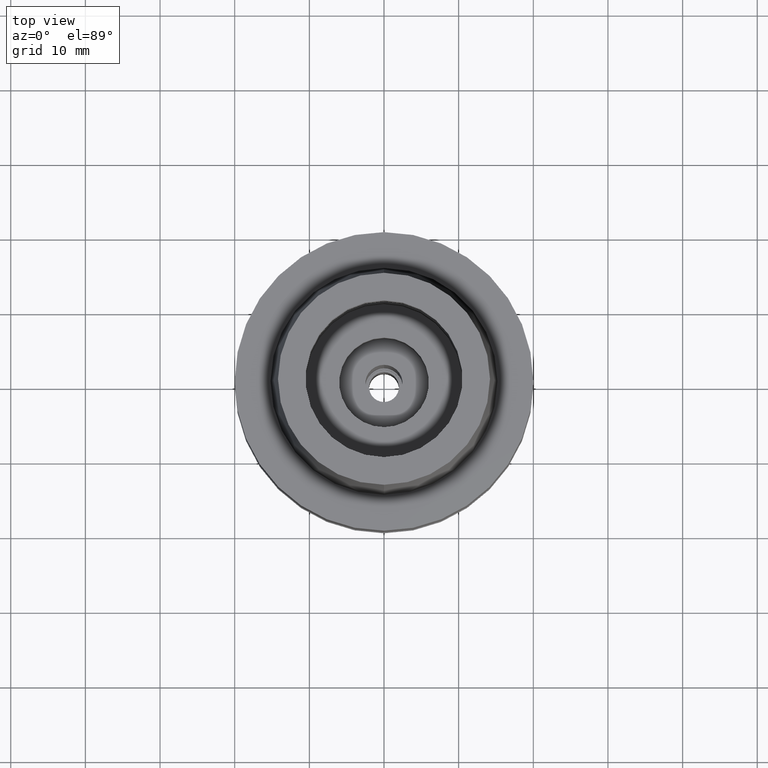
[diagram: clean part render]
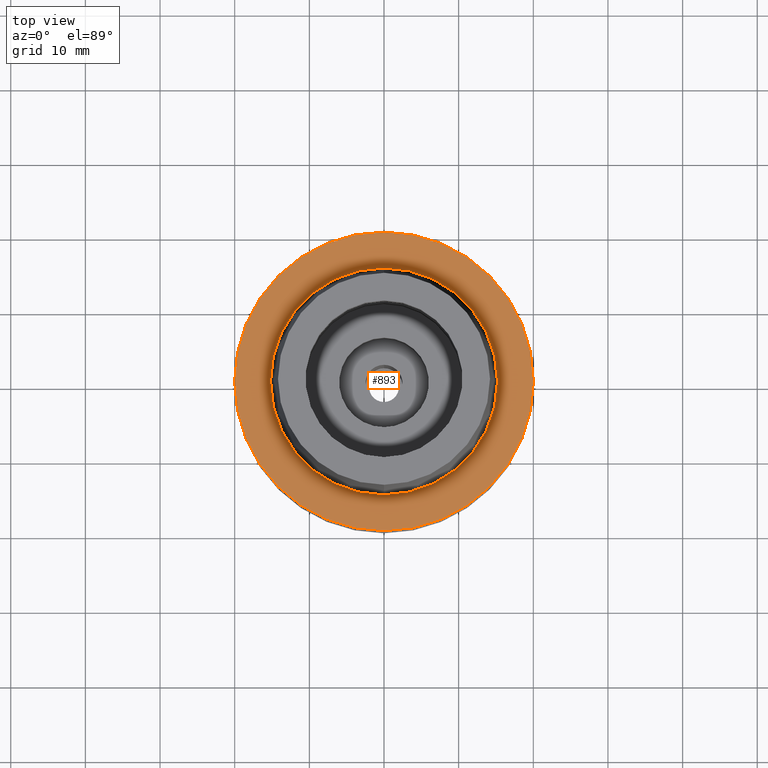
[diagram: same view with one face highlighted and labeled with its STEP entity id]
A machine part, top view. The second image highlights one B-rep face of the part: STEP entity #893.
In plain terms, the highlighted planar face has unit normal (0, 0, 1).
Its self-contained STEP definition (entity closure, byte-faithful):
#64=CARTESIAN_POINT('',(0.E0,0.E0,0.E0));
#65=DIRECTION('',(0.E0,0.E0,-1.E0));
#66=DIRECTION('',(0.E0,-1.E0,0.E0));
#67=AXIS2_PLACEMENT_3D('',#64,#65,#66);
#72=CARTESIAN_POINT('',(0.E0,0.E0,0.E0));
#73=DIRECTION('',(0.E0,0.E0,-1.E0));
#74=DIRECTION('',(0.E0,1.E0,0.E0));
#75=AXIS2_PLACEMENT_3D('',#72,#73,#74);
#80=CARTESIAN_POINT('',(0.E0,0.E0,6.821210263297E-13));
#81=DIRECTION('',(0.E0,0.E0,1.E0));
#82=DIRECTION('',(0.E0,-1.E0,0.E0));
#83=AXIS2_PLACEMENT_3D('',#80,#81,#82);
#88=CARTESIAN_POINT('',(0.E0,0.E0,6.821210263297E-13));
#89=DIRECTION('',(0.E0,0.E0,1.E0));
#90=DIRECTION('',(0.E0,1.E0,0.E0));
#91=AXIS2_PLACEMENT_3D('',#88,#89,#90);
#728=CARTESIAN_POINT('',(0.E0,1.519999963424E1,3.801403636317E-13));
#729=VERTEX_POINT('',#728);
#730=CARTESIAN_POINT('',(0.E0,-1.519999963424E1,3.801403636317E-13));
#731=VERTEX_POINT('',#730);
#732=CARTESIAN_POINT('',(0.E0,-2.E1,0.E0));
#733=CARTESIAN_POINT('',(0.E0,2.E1,0.E0));
#734=VERTEX_POINT('',#732);
#735=VERTEX_POINT('',#733);
#878=CARTESIAN_POINT('',(0.E0,0.E0,0.E0));
#879=DIRECTION('',(0.E0,0.E0,1.E0));
#880=DIRECTION('',(0.E0,1.E0,0.E0));
#881=AXIS2_PLACEMENT_3D('',#878,#879,#880);
#882=PLANE('',#881);
#884=ORIENTED_EDGE('',*,*,#883,.T.);
#886=ORIENTED_EDGE('',*,*,#885,.T.);
#887=EDGE_LOOP('',(#884,#886));
#888=FACE_OUTER_BOUND('',#887,.F.);
#889=ORIENTED_EDGE('',*,*,#871,.T.);
#890=ORIENTED_EDGE('',*,*,#860,.T.);
#891=EDGE_LOOP('',(#889,#890));
#892=FACE_BOUND('',#891,.F.);
#68=CIRCLE('',#67,2.E1);
#76=CIRCLE('',#75,2.E1);
#84=CIRCLE('',#83,1.519999963424E1);
#92=CIRCLE('',#91,1.519999963424E1);
#860=EDGE_CURVE('',#729,#731,#92,.T.);
#871=EDGE_CURVE('',#731,#729,#84,.T.);
#883=EDGE_CURVE('',#734,#735,#68,.T.);
#885=EDGE_CURVE('',#735,#734,#76,.T.);
#893=ADVANCED_FACE('',(#888,#892),#882,.T.);